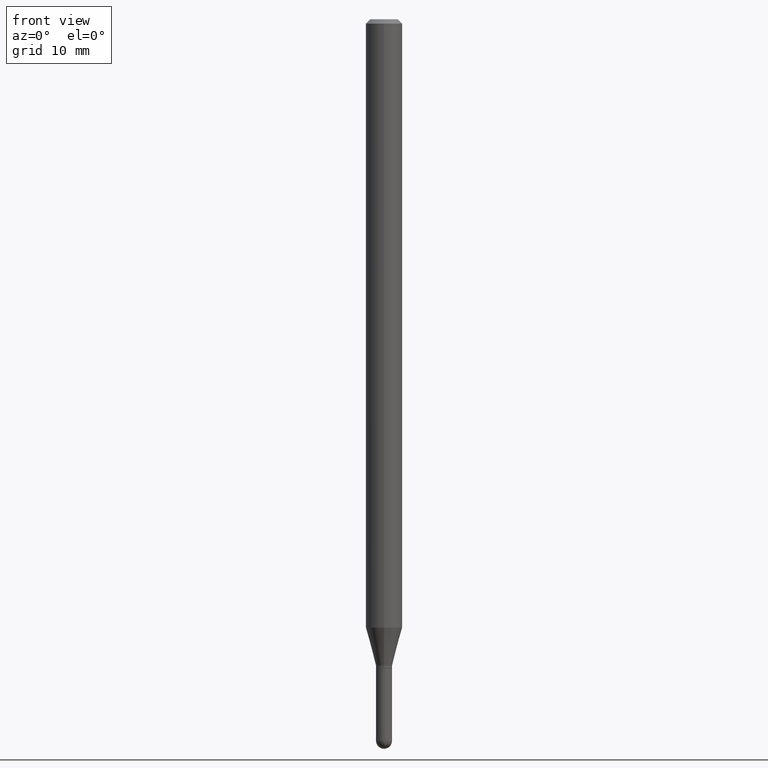
[diagram: clean part render]
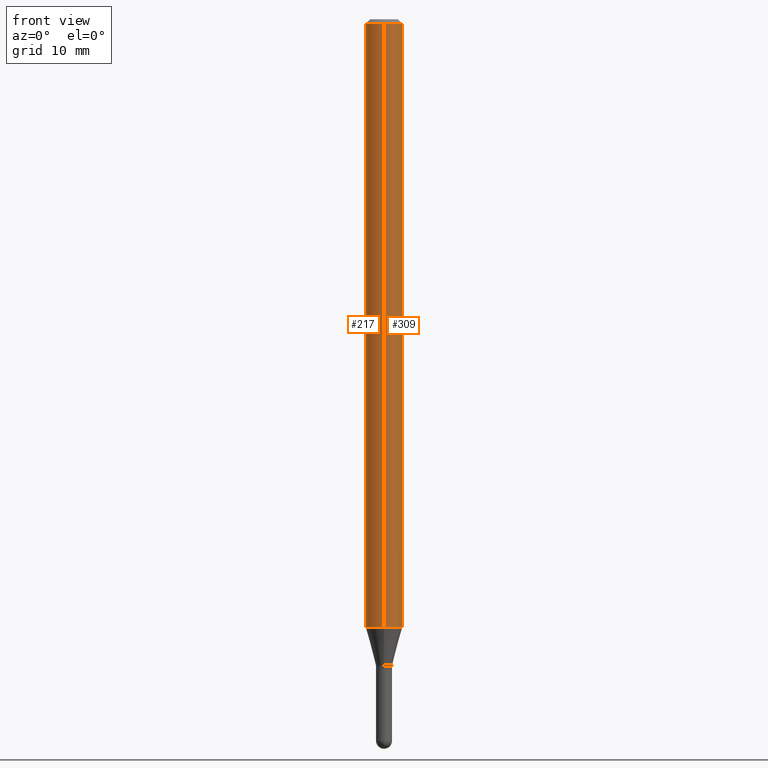
[diagram: same view with one multi-face feature highlighted, each face labeled with its STEP entity id]
A machine part, front view. The highlighted faces form ONE feature: a constant-radius fillet chain: 2 tangent blend faces with common blend radius 1.5875 mm. The faces share edges in the B-rep.
Their STEP definitions:
[1] entity #309 (Cylinder):
#7 = DIRECTION ( 'NONE',  ( -2.445499313692014711E-29, 3.491437650356916389E-15, 1.000000000000000000 ) ) ;
#13 = CARTESIAN_POINT ( 'NONE',  ( 4.440892098501138921E-16, 0.06249999999999995143, -0.01500000000000022669 ) ) ;
#19 = VERTEX_POINT ( 'NONE', #500 ) ;
#24 = VERTEX_POINT ( 'NONE', #426 ) ;
#30 = AXIS2_PLACEMENT_3D ( 'NONE', #358, #7, #239 ) ;
#41 = VERTEX_POINT ( 'NONE', #145 ) ;
#65 = EDGE_CURVE ( 'NONE', #19, #252, #225, .T. ) ;
#67 = ORIENTED_EDGE ( 'NONE', *, *, #413, .F. ) ;
#86 = CIRCLE ( 'NONE', #355, 0.06250000000000000000 ) ;
#113 = CARTESIAN_POINT ( 'NONE',  ( 4.440892098500625669E-16, 0.06250000000000000000, -2.182148531473072497E-16 ) ) ;
#119 = CARTESIAN_POINT ( 'NONE',  ( 5.097345510727747857E-29, -7.277476600949894136E-15, -2.084378221735090797 ) ) ;
#124 = DIRECTION ( 'NONE',  ( -2.445499313692014431E-29, 3.491437650356915995E-15, 1.000000000000000000 ) ) ;
#137 = VECTOR ( 'NONE', #124, 39.37007874015748143 ) ;
#145 = CARTESIAN_POINT ( 'NONE',  ( -4.364351673553912750E-16, -0.06250000000000005551, -0.01499999999999979128 ) ) ;
#174 = ORIENTED_EDGE ( 'NONE', *, *, #495, .T. ) ;
#225 = LINE ( 'NONE', #113, #262 ) ;
#234 = CARTESIAN_POINT ( 'NONE',  ( 3.668248970538024537E-31, -5.237156475535378109E-17, -0.01500000000000000812 ) ) ;
#239 = DIRECTION ( 'NONE',  ( -6.982962677686265922E-15, -1.000000000000000000, 3.491437650356915995E-15 ) ) ;
#240 = CIRCLE ( 'NONE', #393, 0.06250000000000000000 ) ;
#252 = VERTEX_POINT ( 'NONE', #13 ) ;
#262 = VECTOR ( 'NONE', #510, 39.37007874015748143 ) ;
#274 = CARTESIAN_POINT ( 'NONE',  ( -4.364351673553916201E-16, -0.06250000000000000000, 2.182148531473072497E-16 ) ) ;
#309 = ADVANCED_FACE ( 'NONE', ( #394 ), #397, .T. ) ;
#317 = DIRECTION ( 'NONE',  ( -2.445499313692014711E-29, 3.491437650356916389E-15, 1.000000000000000000 ) ) ;
#355 = AXIS2_PLACEMENT_3D ( 'NONE', #234, #359, #469 ) ;
#358 = CARTESIAN_POINT ( 'NONE',  ( 0.000000000000000000, 0.000000000000000000, 0.000000000000000000 ) ) ;
#359 = DIRECTION ( 'NONE',  ( -2.445499313692014711E-29, 3.491437650356916389E-15, 1.000000000000000000 ) ) ;
#393 = AXIS2_PLACEMENT_3D ( 'NONE', #119, #317, #473 ) ;
#394 = FACE_OUTER_BOUND ( 'NONE', #419, .T. ) ;
#397 = CYLINDRICAL_SURFACE ( 'NONE', #30, 0.06250000000000000000 ) ;
#413 = EDGE_CURVE ( 'NONE', #41, #252, #86, .T. ) ;
#419 = EDGE_LOOP ( 'NONE', ( #174, #460, #67, #497 ) ) ;
#426 = CARTESIAN_POINT ( 'NONE',  ( -4.364351673553408372E-16, -0.06250000000000729972, -2.084378221735090797 ) ) ;
#460 = ORIENTED_EDGE ( 'NONE', *, *, #65, .T. ) ;
#469 = DIRECTION ( 'NONE',  ( -6.982962677686265922E-15, -1.000000000000000000, 3.483106191921935554E-15 ) ) ;
#473 = DIRECTION ( 'NONE',  ( -6.982962677686265922E-15, -1.000000000000000000, 4.370956789862821150E-15 ) ) ;
#477 = LINE ( 'NONE', #274, #137 ) ;
#495 = EDGE_CURVE ( 'NONE', #24, #19, #240, .T. ) ;
#497 = ORIENTED_EDGE ( 'NONE', *, *, #512, .F. ) ;
#500 = CARTESIAN_POINT ( 'NONE',  ( 4.440892098501132019E-16, 0.06249999999999269334, -2.084378221735091241 ) ) ;
#510 = DIRECTION ( 'NONE',  ( -2.445499313692014431E-29, 3.491437650356915995E-15, 1.000000000000000000 ) ) ;
#512 = EDGE_CURVE ( 'NONE', #24, #41, #477, .T. ) ;
[2] entity #217 (Cylinder):
#6 = ORIENTED_EDGE ( 'NONE', *, *, #512, .T. ) ;
#9 = CIRCLE ( 'NONE', #56, 0.06250000000000000000 ) ;
#13 = CARTESIAN_POINT ( 'NONE',  ( 4.440892098501138921E-16, 0.06249999999999995143, -0.01500000000000022669 ) ) ;
#19 = VERTEX_POINT ( 'NONE', #500 ) ;
#24 = VERTEX_POINT ( 'NONE', #426 ) ;
#31 = ORIENTED_EDGE ( 'NONE', *, *, #451, .T. ) ;
#41 = VERTEX_POINT ( 'NONE', #145 ) ;
#56 = AXIS2_PLACEMENT_3D ( 'NONE', #418, #183, #82 ) ;
#60 = EDGE_CURVE ( 'NONE', #252, #41, #9, .T. ) ;
#65 = EDGE_CURVE ( 'NONE', #19, #252, #225, .T. ) ;
#82 = DIRECTION ( 'NONE',  ( -6.982962677686265922E-15, -1.000000000000000000, 3.483106191921935554E-15 ) ) ;
#113 = CARTESIAN_POINT ( 'NONE',  ( 4.440892098500625669E-16, 0.06250000000000000000, -2.182148531473072497E-16 ) ) ;
#124 = DIRECTION ( 'NONE',  ( -2.445499313692014431E-29, 3.491437650356915995E-15, 1.000000000000000000 ) ) ;
#137 = VECTOR ( 'NONE', #124, 39.37007874015748143 ) ;
#145 = CARTESIAN_POINT ( 'NONE',  ( -4.364351673553912750E-16, -0.06250000000000005551, -0.01499999999999979128 ) ) ;
#154 = ORIENTED_EDGE ( 'NONE', *, *, #60, .F. ) ;
#183 = DIRECTION ( 'NONE',  ( -2.445499313692014711E-29, 3.491437650356916389E-15, 1.000000000000000000 ) ) ;
#204 = DIRECTION ( 'NONE',  ( -2.445499313692014711E-29, 3.491437650356916389E-15, 1.000000000000000000 ) ) ;
#217 = ADVANCED_FACE ( 'NONE', ( #365 ), #399, .T. ) ;
#225 = LINE ( 'NONE', #113, #262 ) ;
#231 = CARTESIAN_POINT ( 'NONE',  ( 5.097345510727747857E-29, -7.277476600949894136E-15, -2.084378221735090797 ) ) ;
#236 = DIRECTION ( 'NONE',  ( -6.982962677686265922E-15, -1.000000000000000000, 3.491437650356915995E-15 ) ) ;
#252 = VERTEX_POINT ( 'NONE', #13 ) ;
#262 = VECTOR ( 'NONE', #510, 39.37007874015748143 ) ;
#274 = CARTESIAN_POINT ( 'NONE',  ( -4.364351673553916201E-16, -0.06250000000000000000, 2.182148531473072497E-16 ) ) ;
#324 = DIRECTION ( 'NONE',  ( -2.445499313692014711E-29, 3.491437650356916389E-15, 1.000000000000000000 ) ) ;
#341 = EDGE_LOOP ( 'NONE', ( #350, #31, #6, #154 ) ) ;
#350 = ORIENTED_EDGE ( 'NONE', *, *, #65, .F. ) ;
#362 = DIRECTION ( 'NONE',  ( -6.982962677686265922E-15, -1.000000000000000000, 4.370956789862821150E-15 ) ) ;
#364 = AXIS2_PLACEMENT_3D ( 'NONE', #231, #324, #362 ) ;
#365 = FACE_OUTER_BOUND ( 'NONE', #341, .T. ) ;
#399 = CYLINDRICAL_SURFACE ( 'NONE', #411, 0.06250000000000000000 ) ;
#411 = AXIS2_PLACEMENT_3D ( 'NONE', #443, #204, #236 ) ;
#418 = CARTESIAN_POINT ( 'NONE',  ( 3.668248970538024537E-31, -5.237156475535378109E-17, -0.01500000000000000812 ) ) ;
#426 = CARTESIAN_POINT ( 'NONE',  ( -4.364351673553408372E-16, -0.06250000000000729972, -2.084378221735090797 ) ) ;
#443 = CARTESIAN_POINT ( 'NONE',  ( 0.000000000000000000, 0.000000000000000000, 0.000000000000000000 ) ) ;
#447 = CIRCLE ( 'NONE', #364, 0.06250000000000000000 ) ;
#451 = EDGE_CURVE ( 'NONE', #19, #24, #447, .T. ) ;
#477 = LINE ( 'NONE', #274, #137 ) ;
#500 = CARTESIAN_POINT ( 'NONE',  ( 4.440892098501132019E-16, 0.06249999999999269334, -2.084378221735091241 ) ) ;
#510 = DIRECTION ( 'NONE',  ( -2.445499313692014431E-29, 3.491437650356915995E-15, 1.000000000000000000 ) ) ;
#512 = EDGE_CURVE ( 'NONE', #24, #41, #477, .T. ) ;